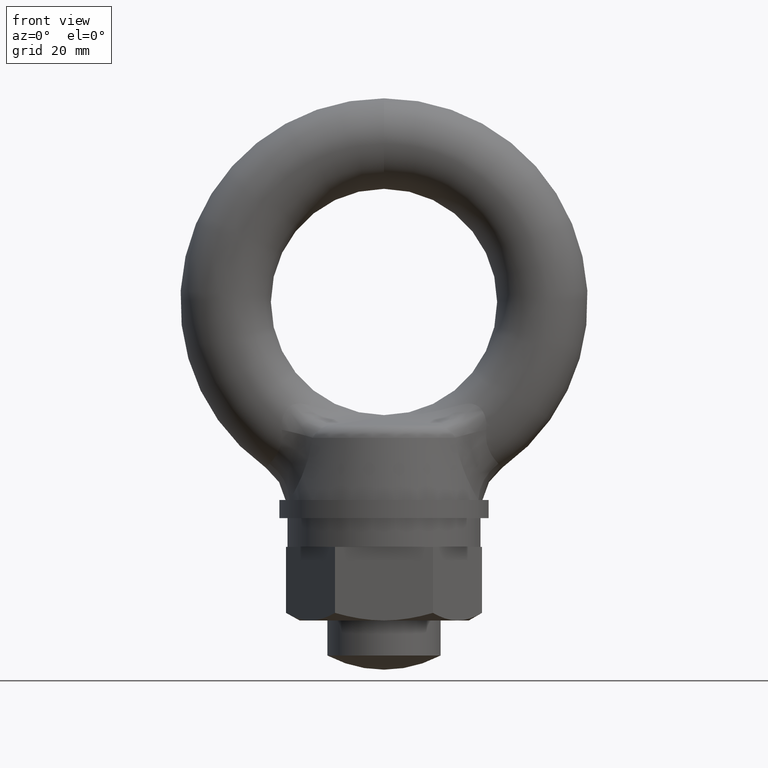
[diagram: clean part render]
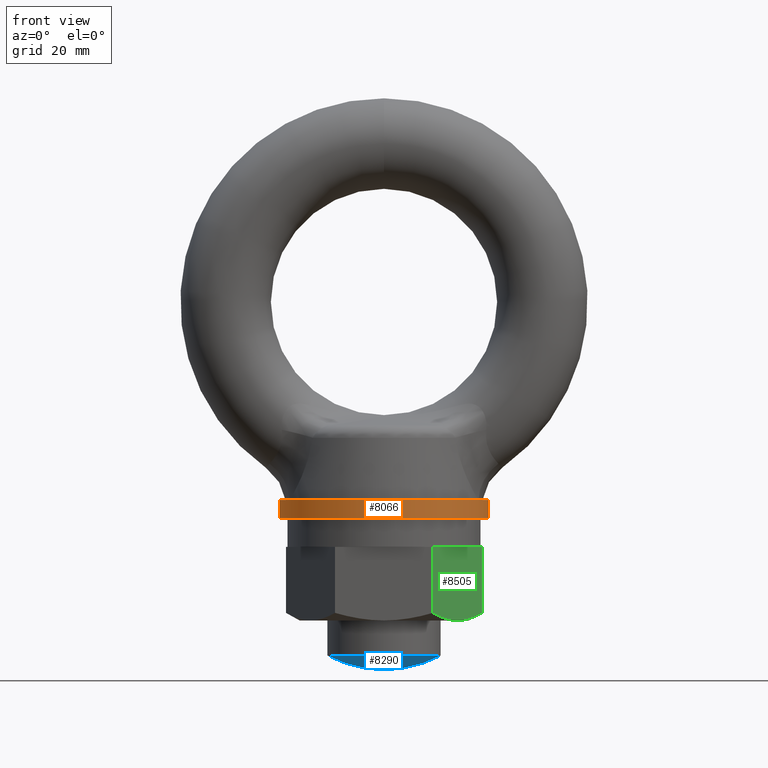
[diagram: same view with three faces highlighted in distinct colors, each labeled with its STEP entity id]
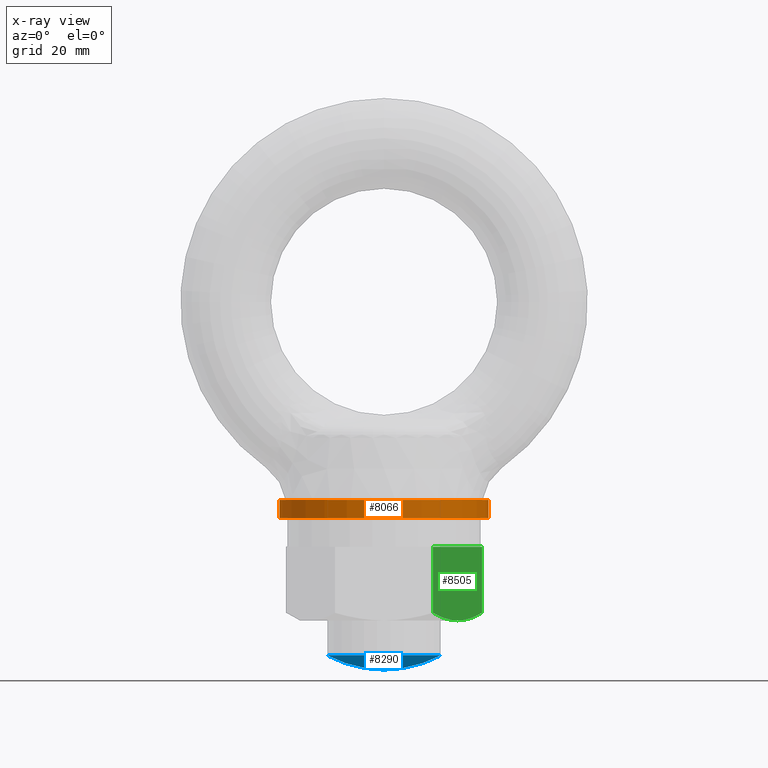
[diagram: x-ray of the same camera — body ghosted, the three highlighted faces saturated]
A machine part, front view with three faces highlighted in distinct colors.
The next image is the same camera in x-ray (body ghosted, the three faces saturated) — at least one of them is partly hidden behind the body in this view.
Their STEP definitions:

[orange] entity #8066 — the highlighted cylindrical surface (partial cylindrical patch) has radius 18.5 mm, axis along (0, 0, -1).
#7990 = EDGE_CURVE ( 'NONE', #8050, #8049, #8611, .T. ) ;
#7991 = ORIENTED_EDGE ( 'NONE', *, *, #8000, .T. ) ;
#7992 = ORIENTED_EDGE ( 'NONE', *, *, #7993, .F. ) ;
#7993 = EDGE_CURVE ( 'NONE', #8053, #7998, #8606, .T. ) ;
#7998 = VERTEX_POINT ( 'NONE', #8587 ) ;
#8000 = EDGE_CURVE ( 'NONE', #8049, #7998, #8586, .T. ) ;
#8049 = VERTEX_POINT ( 'NONE', #8906 ) ;
#8050 = VERTEX_POINT ( 'NONE', #8905 ) ;
#8052 = EDGE_CURVE ( 'NONE', #8050, #8053, #8904, .T. ) ;
#8053 = VERTEX_POINT ( 'NONE', #8775 ) ;
#8066 = ADVANCED_FACE ( 'NONE', ( #8759 ), #8758, .T. ) ;
#8067 = EDGE_LOOP ( 'NONE', ( #8068, #8069, #7991, #7992 ) ) ;
#8068 = ORIENTED_EDGE ( 'NONE', *, *, #8052, .F. ) ;
#8069 = ORIENTED_EDGE ( 'NONE', *, *, #7990, .T. ) ;
#8583 = DIRECTION ( 'NONE',  ( 0.0000000000000000000, 0.0000000000000000000, -1.000000000000000000 ) ) ;
#8584 = VECTOR ( 'NONE', #8583, 1000.000000000000000 ) ;
#8585 = CARTESIAN_POINT ( 'NONE',  ( -18.50000000000000000, 0.0000000000000000000, 961.7999990000000700 ) ) ;
#8586 = LINE ( 'NONE', #8585, #8584 ) ;
#8587 = CARTESIAN_POINT ( 'NONE',  ( -18.50000000000000000, 0.0000000000000000000, -38.20000100000019900 ) ) ;
#8602 = DIRECTION ( 'NONE',  ( 1.000000000000000000, 0.0000000000000000000, 0.0000000000000000000 ) ) ;
#8603 = DIRECTION ( 'NONE',  ( 0.0000000000000000000, 0.0000000000000000000, -1.000000000000000000 ) ) ;
#8604 = CARTESIAN_POINT ( 'NONE',  ( 0.0000000000000000000, 0.0000000000000000000, -38.20000100000019900 ) ) ;
#8605 = AXIS2_PLACEMENT_3D ( 'NONE', #8604, #8603, #8602 ) ;
#8606 = CIRCLE ( 'NONE', #8605, 18.50000000000000000 ) ;
#8607 = DIRECTION ( 'NONE',  ( 1.000000000000000000, 0.0000000000000000000, 0.0000000000000000000 ) ) ;
#8608 = DIRECTION ( 'NONE',  ( 0.0000000000000000000, 0.0000000000000000000, -1.000000000000000000 ) ) ;
#8609 = CARTESIAN_POINT ( 'NONE',  ( 0.0000000000000000000, 0.0000000000000000000, -35.00000000000000000 ) ) ;
#8610 = AXIS2_PLACEMENT_3D ( 'NONE', #8609, #8608, #8607 ) ;
#8611 = CIRCLE ( 'NONE', #8610, 18.50000000000000000 ) ;
#8752 = DIRECTION ( 'NONE',  ( -1.000000000000000000, 0.0000000000000000000, 0.0000000000000000000 ) ) ;
#8753 = DIRECTION ( 'NONE',  ( 0.0000000000000000000, 0.0000000000000000000, -1.000000000000000000 ) ) ;
#8754 = CARTESIAN_POINT ( 'NONE',  ( 0.0000000000000000000, 0.0000000000000000000, 961.7999990000000700 ) ) ;
#8755 = AXIS2_PLACEMENT_3D ( 'NONE', #8754, #8753, #8752 ) ;
#8758 = CYLINDRICAL_SURFACE ( 'NONE', #8755, 18.50000000000000000 ) ;
#8759 = FACE_OUTER_BOUND ( 'NONE', #8067, .T. ) ;
#8775 = CARTESIAN_POINT ( 'NONE',  ( 18.50000000000000000, 2.265521754571397900E-015, -38.20000100000019900 ) ) ;
#8776 = DIRECTION ( 'NONE',  ( 0.0000000000000000000, 0.0000000000000000000, -1.000000000000000000 ) ) ;
#8777 = VECTOR ( 'NONE', #8776, 1000.000000000000000 ) ;
#8778 = CARTESIAN_POINT ( 'NONE',  ( 18.50000000000000000, 2.265521754571397900E-015, 961.7999990000000700 ) ) ;
#8904 = LINE ( 'NONE', #8778, #8777 ) ;
#8905 = CARTESIAN_POINT ( 'NONE',  ( 18.50000000000000000, 2.265521754571397900E-015, -35.00000000000000000 ) ) ;
#8906 = CARTESIAN_POINT ( 'NONE',  ( -18.50000000000000000, 0.0000000000000000000, -35.00000000000000000 ) ) ;

[blue] entity #8290 — the highlighted spherical surface has radius 21.25 mm.
#1586 = CARTESIAN_POINT ( 'NONE',  ( -9.999998711995109700, 1.224606274957423500E-015, -62.50000068693589800 ) ) ;
#1646 = DIRECTION ( 'NONE',  ( -1.000000000000000000, 0.0000000000000000000, 0.0000000000000000000 ) ) ;
#1647 = DIRECTION ( 'NONE',  ( 0.0000000000000000000, 0.0000000000000000000, -1.000000000000000000 ) ) ;
#1648 = CARTESIAN_POINT ( 'NONE',  ( 0.0000000000000000000, 0.0000000000000000000, -62.50000068693589800 ) ) ;
#1649 = AXIS2_PLACEMENT_3D ( 'NONE', #1648, #1647, #1646 ) ;
#1650 = CIRCLE ( 'NONE', #1649, 9.999998711995109700 ) ;
#4969 = DIRECTION ( 'NONE',  ( -1.000000000000000000, 0.0000000000000000000, 0.0000000000000000000 ) ) ;
#4970 = DIRECTION ( 'NONE',  ( 0.0000000000000000000, 1.000000000000000000, 0.0000000000000000000 ) ) ;
#4971 = AXIS2_PLACEMENT_3D ( 'NONE', #4973, #4970, #4969 ) ;
#4972 = SPHERICAL_SURFACE ( 'NONE', #4971, 21.25000000000000000 ) ;
#4973 = CARTESIAN_POINT ( 'NONE',  ( 0.0000000000000000000, 0.0000000000000000000, -43.75000000000000000 ) ) ;
#5136 = FACE_OUTER_BOUND ( 'NONE', #8291, .T. ) ;
#7190 = AXIS2_PLACEMENT_3D ( 'NONE', #7211, #7210, #7209 ) ;
#7191 = CIRCLE ( 'NONE', #7190, 21.25000000000000000 ) ;
#7208 = CARTESIAN_POINT ( 'NONE',  ( -1.301144250936276000E-015, 0.0000000000000000000, -65.00000000000000000 ) ) ;
#7209 = DIRECTION ( 'NONE',  ( -1.000000000000000000, -1.224606353822377500E-016, 0.0000000000000000000 ) ) ;
#7210 = DIRECTION ( 'NONE',  ( -1.224606353822377300E-016, 1.000000000000000000, 0.0000000000000000000 ) ) ;
#7211 = CARTESIAN_POINT ( 'NONE',  ( 0.0000000000000000000, 0.0000000000000000000, -43.75000000000000000 ) ) ;
#7214 = CARTESIAN_POINT ( 'NONE',  ( 9.999998711995109700, 0.0000000000000000000, -62.50000068693589800 ) ) ;
#8151 = EDGE_CURVE ( 'NONE', #8209, #8429, #9772, .T. ) ;
#8209 = VERTEX_POINT ( 'NONE', #1586 ) ;
#8213 = EDGE_CURVE ( 'NONE', #8422, #8209, #1650, .T. ) ;
#8290 = ADVANCED_FACE ( 'NONE', ( #5136 ), #4972, .T. ) ;
#8291 = EDGE_LOOP ( 'NONE', ( #8292, #8293, #8294 ) ) ;
#8292 = ORIENTED_EDGE ( 'NONE', *, *, #8428, .F. ) ;
#8293 = ORIENTED_EDGE ( 'NONE', *, *, #8213, .T. ) ;
#8294 = ORIENTED_EDGE ( 'NONE', *, *, #8151, .T. ) ;
#8422 = VERTEX_POINT ( 'NONE', #7214 ) ;
#8428 = EDGE_CURVE ( 'NONE', #8422, #8429, #7191, .T. ) ;
#8429 = VERTEX_POINT ( 'NONE', #7208 ) ;
#9768 = DIRECTION ( 'NONE',  ( 0.0000000000000000000, 0.0000000000000000000, -1.000000000000000000 ) ) ;
#9769 = DIRECTION ( 'NONE',  ( 0.0000000000000000000, -1.000000000000000000, 0.0000000000000000000 ) ) ;
#9770 = CARTESIAN_POINT ( 'NONE',  ( 0.0000000000000000000, 0.0000000000000000000, -43.75000000000000000 ) ) ;
#9771 = AXIS2_PLACEMENT_3D ( 'NONE', #9770, #9769, #9768 ) ;
#9772 = CIRCLE ( 'NONE', #9771, 21.25000000000000400 ) ;

[green] entity #8505 — the highlighted planar face has unit normal (-0.866, 0.5, 0).
#6813 = DIRECTION ( 'NONE',  ( 0.0000000000000000000, 0.0000000000000000000, -1.000000000000000000 ) ) ;
#6814 = VECTOR ( 'NONE', #6813, 1000.000000000000000 ) ;
#6815 = CARTESIAN_POINT ( 'NONE',  ( 8.660253999999998300, -15.00000000000000000, 943.6999969999999400 ) ) ;
#6824 = LINE ( 'NONE', #6815, #6814 ) ;
#6825 = CARTESIAN_POINT ( 'NONE',  ( 8.660253999999998300, -15.00000000000000000, -54.96025704876919300 ) ) ;
#6841 = CARTESIAN_POINT ( 'NONE',  ( 8.660253999999998300, -15.00000000000000000, -54.96025704876919300 ) ) ;
#6842 = CARTESIAN_POINT ( 'NONE',  ( 9.366837087856426400, -13.77616232803231500, -55.36820291810079900 ) ) ;
#6843 = CARTESIAN_POINT ( 'NONE',  ( 10.07931527849527600, -12.54211403966405300, -55.70497015555891800 ) ) ;
#6844 = CARTESIAN_POINT ( 'NONE',  ( 11.16087752197157100, -10.66879349054113900, -56.05502846521169900 ) ) ;
#6845 = CARTESIAN_POINT ( 'NONE',  ( 11.52354536180862600, -10.04063443546068200, -56.14579015667012400 ) ) ;
#6846 = CARTESIAN_POINT ( 'NONE',  ( 12.25376561535718500, -8.775855996115829800, -56.26833623274407600 ) ) ;
#6847 = CARTESIAN_POINT ( 'NONE',  ( 12.62289777058318000, -8.136500419589518500, -56.30000277748287400 ) ) ;
#6848 = CARTESIAN_POINT ( 'NONE',  ( 12.99038069595821900, -7.500000624938359700, -56.30000300000009600 ) ) ;
#6855 = B_SPLINE_CURVE_WITH_KNOTS ( 'NONE', 3,
 ( #6848, #6847, #6846, #6845, #6844, #6843, #6842, #6841 ),
 .UNSPECIFIED., .F., .F.,
 ( 4, 2, 2, 4 ),
 ( 0.008762997866356503700, 0.01094549546842307400, 0.01312799307048964300, 0.01749298827462278000 ),
 .UNSPECIFIED. ) ;
#6893 = DIRECTION ( 'NONE',  ( 0.5000000416625576300, 0.8660253797305483800, 0.0000000000000000000 ) ) ;
#6894 = VECTOR ( 'NONE', #6893, 1000.000000000000200 ) ;
#6895 = CARTESIAN_POINT ( 'NONE',  ( 8.660253999999998300, -15.00000000000000000, -43.29999900000014900 ) ) ;
#6896 = LINE ( 'NONE', #6895, #6894 ) ;
#7418 = CARTESIAN_POINT ( 'NONE',  ( 12.99038069595821900, -7.500000624938359700, -56.30000300000009600 ) ) ;
#7419 = CARTESIAN_POINT ( 'NONE',  ( 13.72810630794762700, -6.222223292591903200, -56.30000278019128500 ) ) ;
#7420 = CARTESIAN_POINT ( 'NONE',  ( 14.45666096691355100, -4.960329747368463800, -56.17231786337159600 ) ) ;
#7421 = CARTESIAN_POINT ( 'NONE',  ( 15.89863042085272000, -2.462765667663241200, -55.70615215981911200 ) ) ;
#7422 = CARTESIAN_POINT ( 'NONE',  ( 16.61215672082293100, -1.226902000882848400, -55.36922388325734800 ) ) ;
#7423 = CARTESIAN_POINT ( 'NONE',  ( 17.32050900000000100, 1.092005928705253900E-015, -54.96025650419309700 ) ) ;
#7434 = B_SPLINE_CURVE_WITH_KNOTS ( 'NONE', 3,
 ( #7423, #7422, #7421, #7420, #7419, #7418 ),
 .UNSPECIFIED., .F., .F.,
 ( 4, 2, 4 ),
 ( 2.380728935018550600E-007, 0.004381617969625000900, 0.008762997866356503700 ),
 .UNSPECIFIED. ) ;
#7436 = CARTESIAN_POINT ( 'NONE',  ( 17.32050900000000100, 1.092005928705253900E-015, -54.96025650419309700 ) ) ;
#7442 = CARTESIAN_POINT ( 'NONE',  ( 12.99038069595821900, -7.500000624938359700, -56.30000300000009600 ) ) ;
#7537 = CARTESIAN_POINT ( 'NONE',  ( 17.32050900000000100, 0.0000000000000000000, -43.29999900000014900 ) ) ;
#7538 = DIRECTION ( 'NONE',  ( 0.0000000000000000000, 0.0000000000000000000, -1.000000000000000000 ) ) ;
#7539 = VECTOR ( 'NONE', #7538, 1000.000000000000000 ) ;
#7540 = CARTESIAN_POINT ( 'NONE',  ( 17.32050900000000100, 0.0000000000000000000, 943.6999969999999400 ) ) ;
#7541 = LINE ( 'NONE', #7540, #7539 ) ;
#7542 = DIRECTION ( 'NONE',  ( -0.5000000416625577400, -0.8660253797305484900, 0.0000000000000000000 ) ) ;
#7543 = DIRECTION ( 'NONE',  ( -0.8660253797305484900, 0.5000000416625577400, 0.0000000000000000000 ) ) ;
#7544 = CARTESIAN_POINT ( 'NONE',  ( 8.660253999999998300, -15.00000000000000000, 943.6999969999999400 ) ) ;
#7545 = AXIS2_PLACEMENT_3D ( 'NONE', #7544, #7543, #7542 ) ;
#7552 = PLANE ( 'NONE',  #7545 ) ;
#7553 = FACE_OUTER_BOUND ( 'NONE', #8506, .T. ) ;
#7559 = CARTESIAN_POINT ( 'NONE',  ( 8.660253999999998300, -15.00000000000000000, -43.29999900000014900 ) ) ;
#8331 = EDGE_CURVE ( 'NONE', #8499, #8510, #6896, .T. ) ;
#8332 = ORIENTED_EDGE ( 'NONE', *, *, #8351, .T. ) ;
#8333 = ORIENTED_EDGE ( 'NONE', *, *, #8342, .F. ) ;
#8342 = EDGE_CURVE ( 'NONE', #8690, #8348, #6855, .T. ) ;
#8348 = VERTEX_POINT ( 'NONE', #6825 ) ;
#8351 = EDGE_CURVE ( 'NONE', #8499, #8348, #6824, .T. ) ;
#8499 = VERTEX_POINT ( 'NONE', #7559 ) ;
#8505 = ADVANCED_FACE ( 'NONE', ( #7553 ), #7552, .F. ) ;
#8506 = EDGE_LOOP ( 'NONE', ( #8507, #8508, #8511, #8332, #8333 ) ) ;
#8507 = ORIENTED_EDGE ( 'NONE', *, *, #8696, .F. ) ;
#8508 = ORIENTED_EDGE ( 'NONE', *, *, #8509, .F. ) ;
#8509 = EDGE_CURVE ( 'NONE', #8510, #8694, #7541, .T. ) ;
#8510 = VERTEX_POINT ( 'NONE', #7537 ) ;
#8511 = ORIENTED_EDGE ( 'NONE', *, *, #8331, .F. ) ;
#8690 = VERTEX_POINT ( 'NONE', #7442 ) ;
#8694 = VERTEX_POINT ( 'NONE', #7436 ) ;
#8696 = EDGE_CURVE ( 'NONE', #8694, #8690, #7434, .T. ) ;